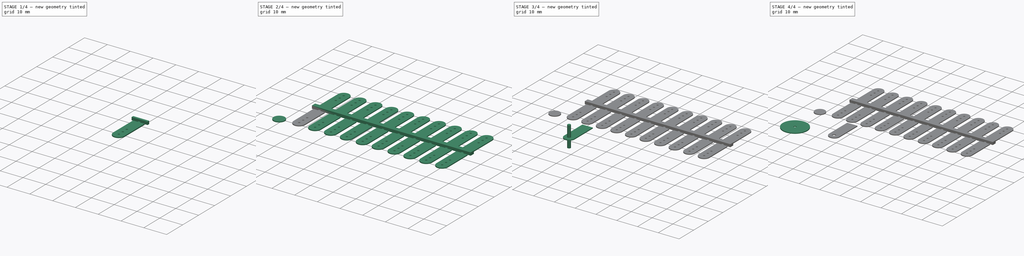
[diagram: build sequence overview — one tinted view per stage of 4, left to right]
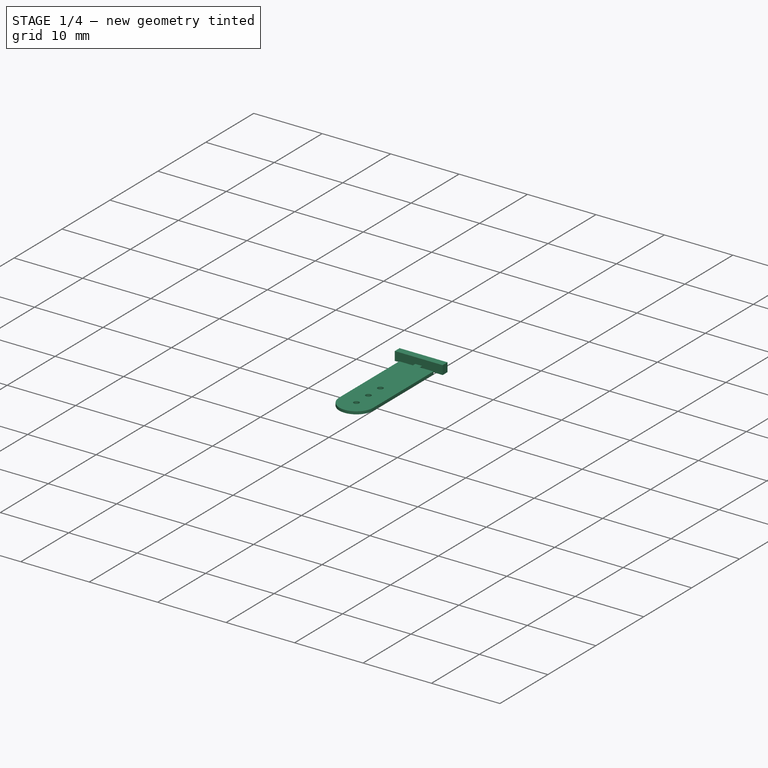
[diagram: stage 1 of 4 — iso view after this stage's code; geometry added in this stage tinted green]
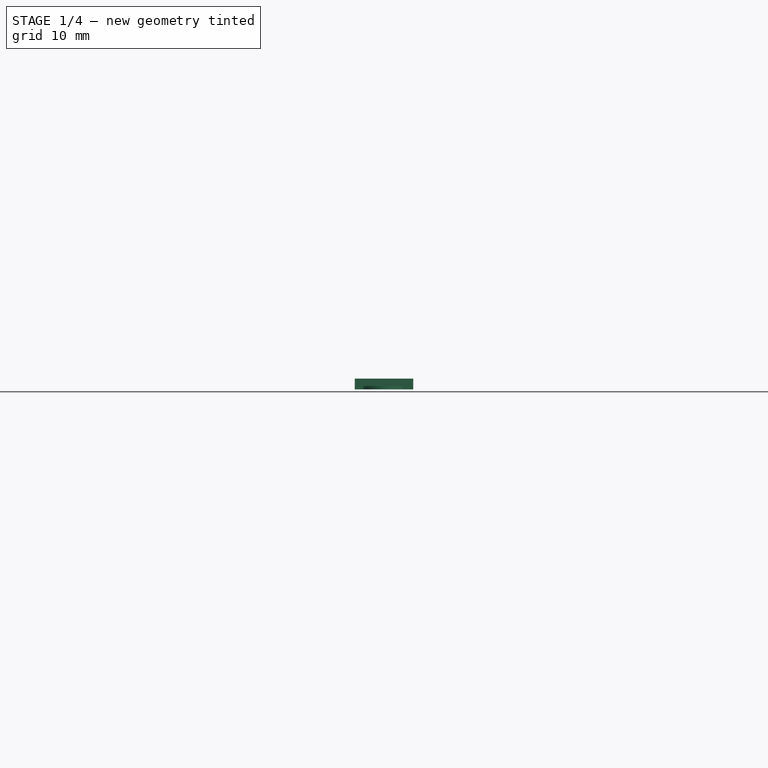
[diagram: stage 1 of 4 — front view after this stage's code; geometry added in this stage tinted green]
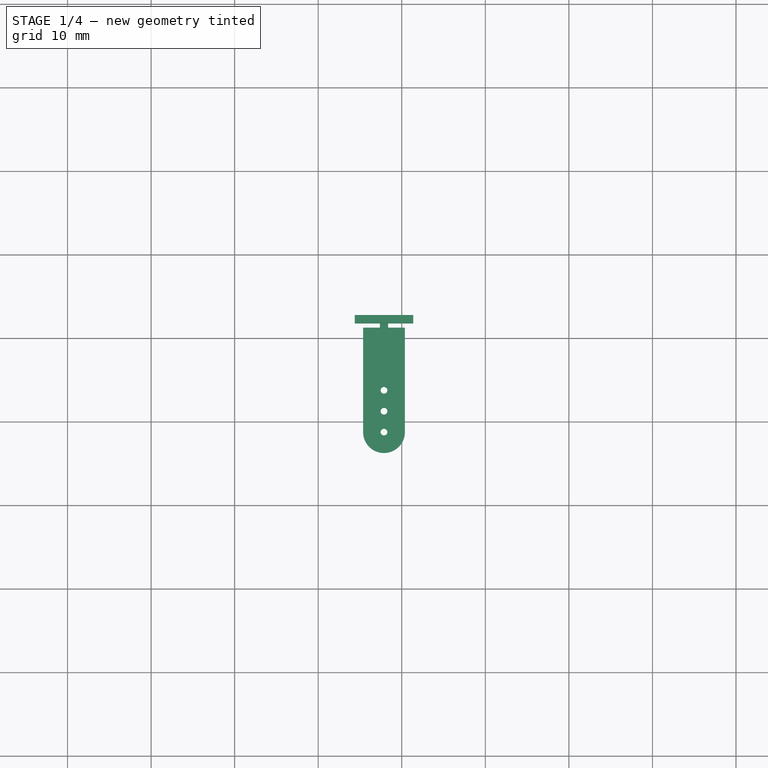
[diagram: stage 1 of 4 — top view after this stage's code; geometry added in this stage tinted green]
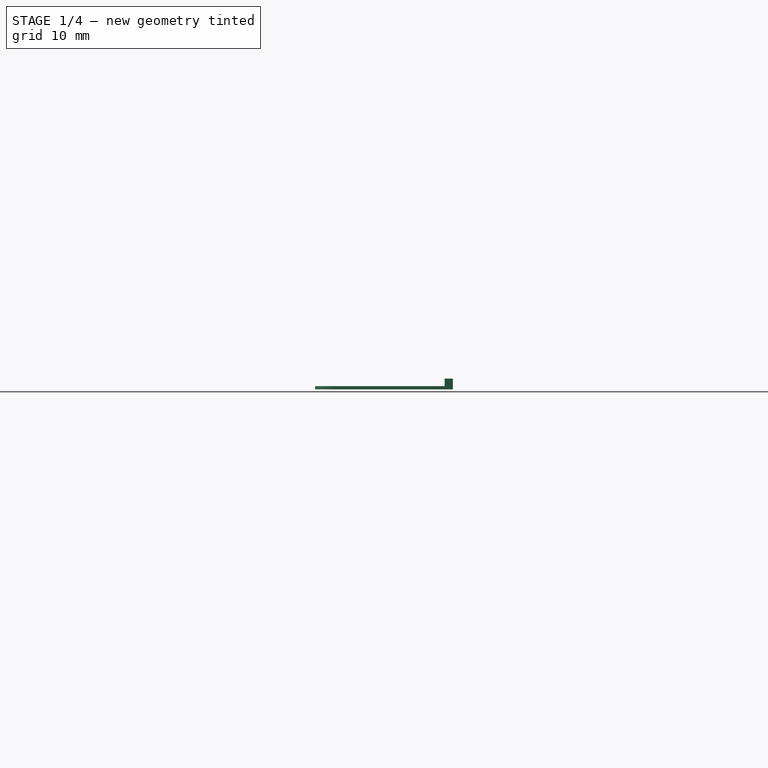
[diagram: stage 1 of 4 — right view after this stage's code; geometry added in this stage tinted green]
FCSTD DOCUMENT  (FreeCAD 1.0R39285 (Git))
Label: Кембрик
License: All rights reserved
LicenseURL: https://en.wikipedia.org/wiki/All_rights_reserved
objects: Part::Cylinder×2, PartDesign::Pad×2, Part::FeaturePython×1, Part::Box×1, Part::Fillet×1, Part::Cut×1, Sketcher::SketchObject×1, PartDesign::LinearPattern×1, PartDesign::Mirrored×1, PartDesign::Body×1
note: 19 computed .brp shape members not serialized (recipe doc carries the construction recipe); baked Part::Feature solids carry a one-line shape summary decoded from their .brp

FEATURE [Sketcher::SketchObject] Sketch
  ArcFitTolerance = 1e-06
  AttachmentSupport = -> [XY_Plane]
  FullyConstrained = false
  MakeInternals = false
  MapMode = 5
  sketch-geometry (20):
    g0: LineSegment StartX=4.37377 StartY=32.7895 StartZ=0 EndX=4.37377 EndY=31.7895 EndZ=0
    g1: LineSegment StartX=4.37377 StartY=31.7895 StartZ=0 EndX=7.37377 EndY=31.7895 EndZ=0
    g2: LineSegment StartX=7.37377 StartY=31.7895 StartZ=0 EndX=7.37377 EndY=31.2895 EndZ=0
    g3: LineSegment StartX=8.37377 StartY=31.2895 StartZ=0 EndX=8.37377 EndY=31.7895 EndZ=0
    g4: LineSegment StartX=8.37377 StartY=31.7895 StartZ=0 EndX=11.3738 EndY=31.7895 EndZ=0
    g5: LineSegment StartX=11.3738 StartY=31.7895 StartZ=0 EndX=11.3738 EndY=32.7895 EndZ=0
    g6: LineSegment StartX=11.3738 StartY=32.7895 StartZ=0 EndX=4.37377 EndY=32.7895 EndZ=0
    g7: LineSegment StartX=5.37377 StartY=31.2895 StartZ=0 EndX=5.37377 EndY=18.7895 EndZ=0
    g8: LineSegment StartX=10.3738 StartY=31.2895 StartZ=0 EndX=10.3738 EndY=18.7895 EndZ=0
    g9: Circle CenterX=7.87377 CenterY=18.7895 CenterZ=0 NormalX=0 NormalY=0 NormalZ=1 AngleXU=0 Radius=0.4
    g10: LineSegment StartX=7.37377 StartY=31.7895 StartZ=0 EndX=8.37377 EndY=31.7895 EndZ=0
    g11: LineSegment StartX=7.37377 StartY=31.2895 StartZ=0 EndX=5.37377 EndY=31.2895 EndZ=0
    g12: LineSegment StartX=8.37377 StartY=31.2895 StartZ=0 EndX=10.3738 EndY=31.2895 EndZ=0
    g13: ArcOfCircle CenterX=7.87377 CenterY=18.7895 CenterZ=0 NormalX=0 NormalY=0 NormalZ=1 AngleXU=0 Radius=2.5 StartAngle=3.14159 EndAngle=6.28319
    g14: GeomPoint X=7.87377 Y=16.2895 Z=0
    g15: Circle CenterX=7.87377 CenterY=21.2895 CenterZ=0 NormalX=0 NormalY=0 NormalZ=1 AngleXU=0 Radius=0.4
    g16: Circle CenterX=7.87377 CenterY=23.7895 CenterZ=0 NormalX=0 NormalY=0 NormalZ=1 AngleXU=0 Radius=0.4
    g17: LineSegment [constr] StartX=7.87377 StartY=23.7895 StartZ=0 EndX=7.87377 EndY=21.2895 EndZ=0
    g18: LineSegment [constr] StartX=7.87377 StartY=21.2895 StartZ=0 EndX=7.87377 EndY=18.7895 EndZ=0
    g19: LineSegment [constr] StartX=7.87377 StartY=23.7895 StartZ=0 EndX=10.3738 EndY=23.7895 EndZ=0
  constraints (52):
    c: Coincident(g0,g1)
    c: Coincident(g1,g2)
    c: Vertical(g3)
    c: Coincident(g3,g4)
    c: Horizontal(g4)
    c: Coincident(g4,g5)
    c: Vertical(g5)
    c: Coincident(g5,g6)
    c: Coincident(g6,g0)
    c: Horizontal(g1)
    c: Vertical(g0)
    c: Vertical(g2)
    c: Horizontal(g6)
    c: Equal(g4,g1)
    c: Horizontal(g3,g1)
    c: DistanceY(g3,g3) = 0.5
    c: DistanceX(g2,g3) = 1
    c: DistanceX(g6,g6) = 7
    c: DistanceY(g0,g0) = 1
    c: Vertical(g8)
    c: Vertical(g7)
    c: DistanceX(g7,g8) = 5
    c: Horizontal(g2,g3)
    c: Diameter(g9) = 0.8
    c: Coincident(g10,g1)
    c: Coincident(g10,g3)
    c: Coincident(g11,g2)
    c: Horizontal(g11)
    c: Coincident(g12,g3)
    c: Horizontal(g12)
    c: Coincident(g8,g12)
    c: Coincident(g7,g11)
    c: Coincident(g13,g9)
    c: Tangent(g7,g13) = -1.5708
    c: Tangent(g8,g13) = 1.5708
    c: PointOnObject(g14,g13)
    c: Vertical(g14,g9)
    c: DistanceY(g14,g8) = 15
    c: Equal(g12,g11)
    c: Vertical(g9,g15)
    c: Vertical(g15,g16)
    c: Coincident(g17,g16)
    c: Coincident(g17,g15)
    c: Coincident(g17,g18)
    c: Coincident(g18,g9)
    c: Equal(g9,g15)
    c: Equal(g15,g16)
    c: Equal(g17,g18)
    c: Coincident(g19,g16)
    c: PointOnObject(g19,g8)
    c: Horizontal(g19)
    c: Equal(g19,g17)
FEATURE [PartDesign::Pad] Pad
  Direction = (0,0,1)
  Length = 1.3
  Length2 = 10
  Profile = -> Sketch [Edge3,Edge4,Edge2,Edge7,Edge6,Edge5]
  ReferenceAxis = -> Sketch [N_Axis]
  Refine = true
  Suppressed = false
  Type = 0
FEATURE [PartDesign::Pad] Pad001
  BaseFeature = -> Pad
  Direction = (0,0,1)
  Length = 0.4
  Length2 = 10
  Profile = -> Sketch [Edge11,Edge10,Edge12,Edge9,Edge8,Edge1,Edge13,Edge16,Edge15,Edge14,Edge2]
  ReferenceAxis = -> Sketch [N_Axis]
  Refine = true
  Suppressed = false
  Type = 0
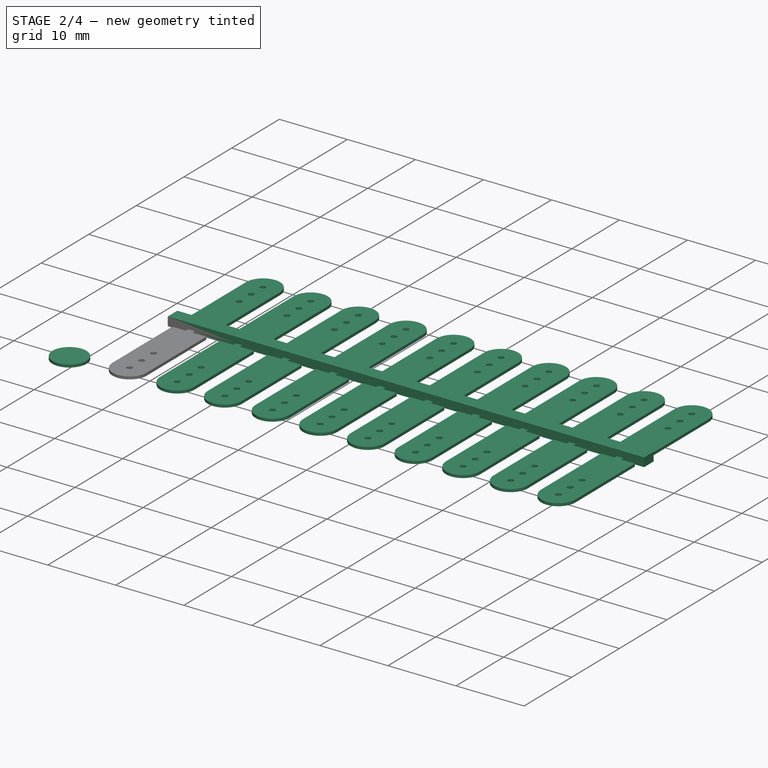
[diagram: stage 2 of 4 — iso view after this stage's code; geometry added in this stage tinted green]
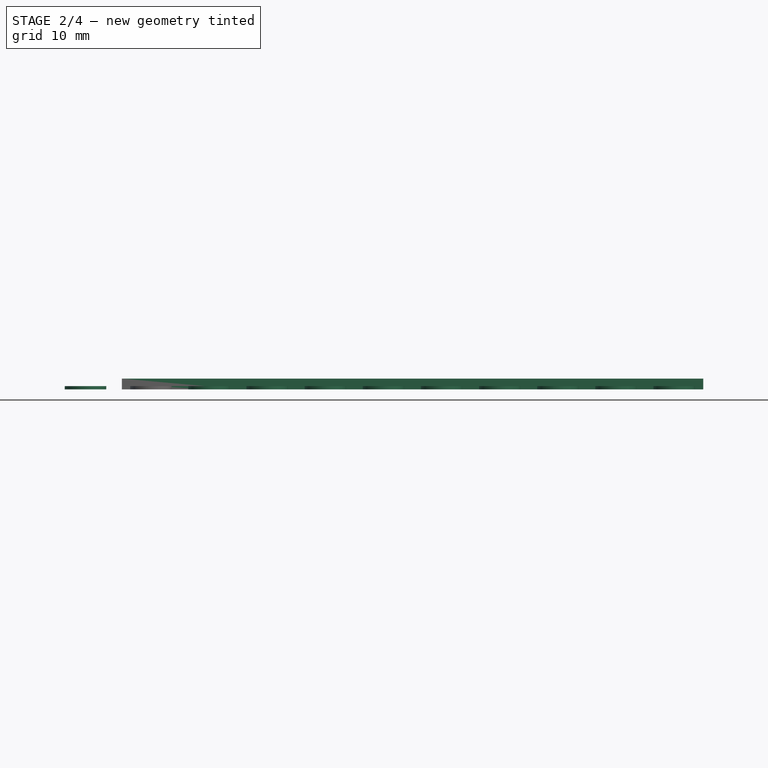
[diagram: stage 2 of 4 — front view after this stage's code; geometry added in this stage tinted green]
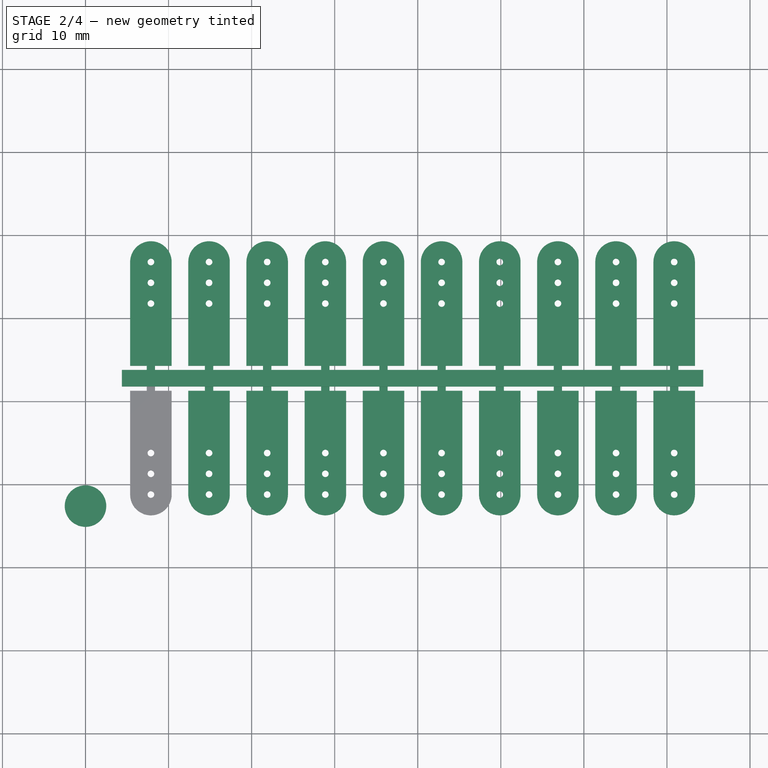
[diagram: stage 2 of 4 — top view after this stage's code; geometry added in this stage tinted green]
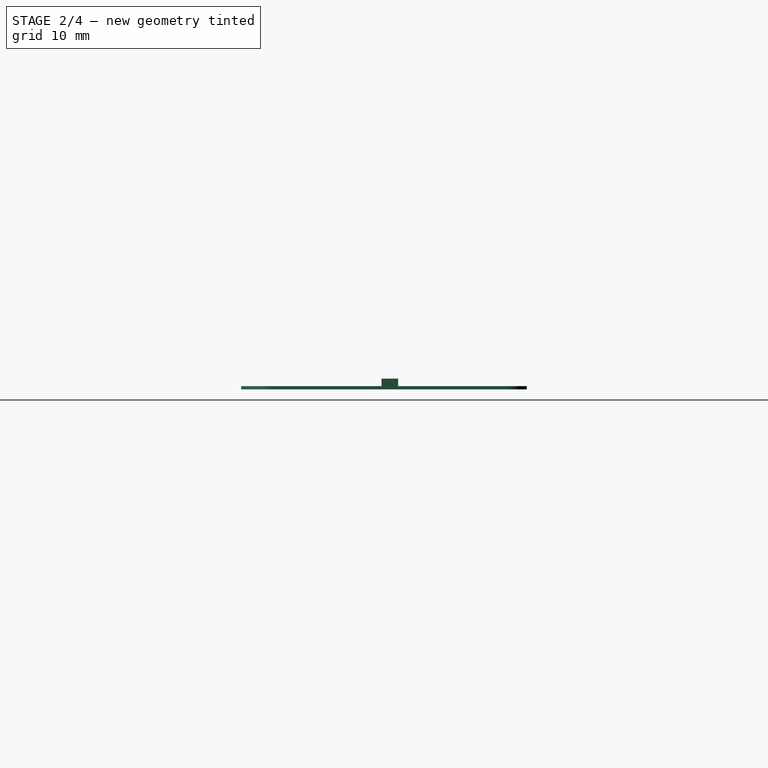
[diagram: stage 2 of 4 — right view after this stage's code; geometry added in this stage tinted green]
FEATURE [Part::Cylinder] Cylinder001  label="Цилиндр001"
  Angle = 360
  AttacherType = Attacher::AttachEngine3D
  FirstAngle = 0
  Height = 0.4
  Placement = pos=(0,17.4,0) rot=(0,0,1;0rad)
  Radius = 2.5
  SecondAngle = 0
FEATURE [PartDesign::LinearPattern] LinearPattern
  BaseFeature = -> Pad001
  Direction = -> X_Axis
  Length = 63
  Mode = 1
  Occurrences = 10
  Offset = 7
  Refine = true
  Suppressed = false
  TransformMode = 1
FEATURE [PartDesign::Mirrored] Mirrored
  BaseFeature = -> LinearPattern
  MirrorPlane = -> LinearPattern [Face116]
  Refine = true
  Suppressed = false
  TransformMode = 1
FEATURE [PartDesign::Body] Body  label="Тело"
  AllowCompound = false
  Group = -> [Sketch,Pad,Pad001,LinearPattern,Mirrored]
  Origin = -> Origin
  Tip = -> Mirrored
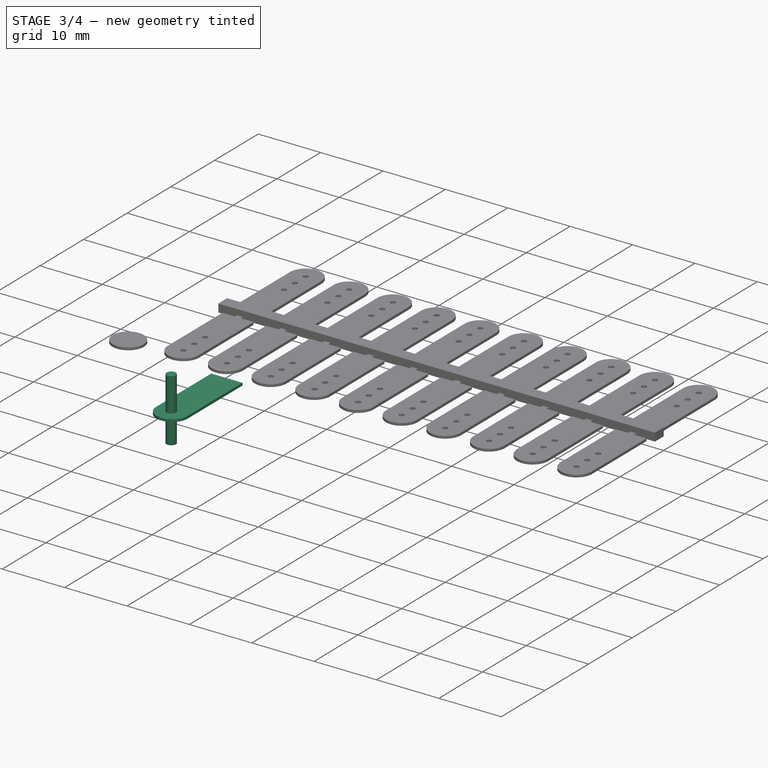
[diagram: stage 3 of 4 — iso view after this stage's code; geometry added in this stage tinted green]
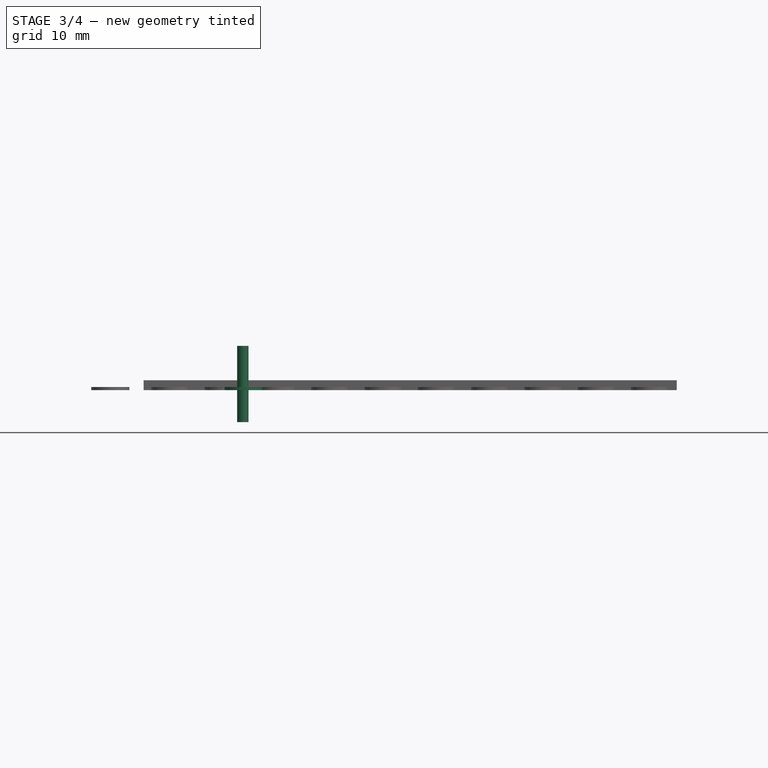
[diagram: stage 3 of 4 — front view after this stage's code; geometry added in this stage tinted green]
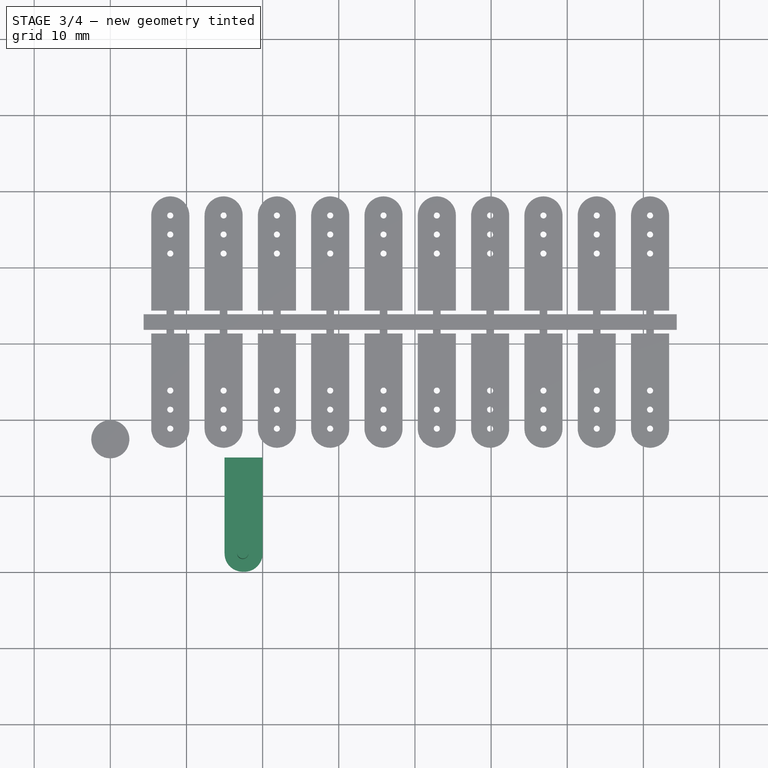
[diagram: stage 3 of 4 — top view after this stage's code; geometry added in this stage tinted green]
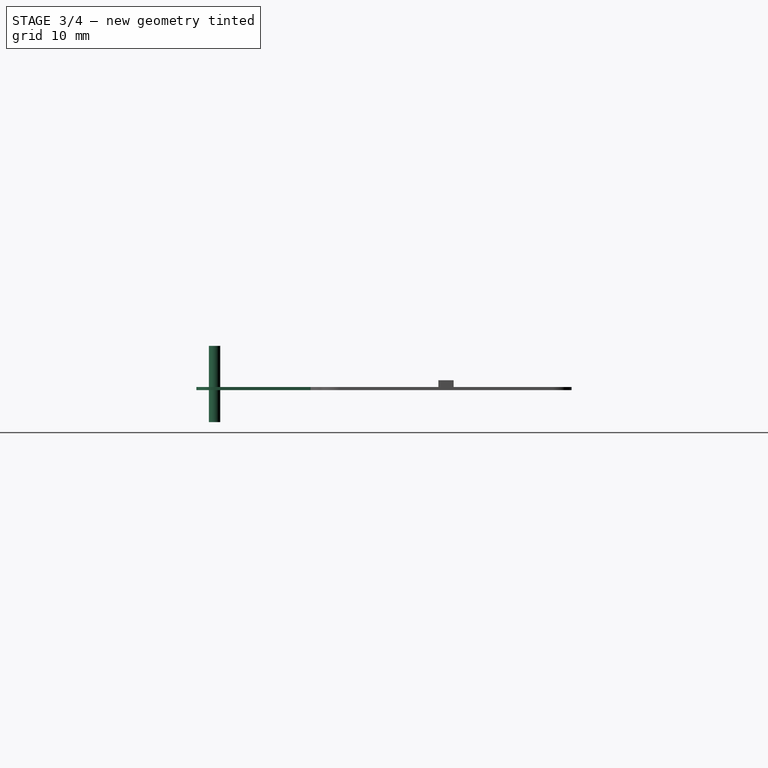
[diagram: stage 3 of 4 — right view after this stage's code; geometry added in this stage tinted green]
FEATURE [Part::Box] Box  label="Куб"
  AttacherType = Attacher::AttachEngine3D
  Height = 0.4
  Length = 5
  Placement = pos=(15,0,0) rot=(0,0,1;0rad)
  Width = 15
FEATURE [Part::Cylinder] Cylinder  label="Цилиндр"
  Angle = 360
  AttacherType = Attacher::AttachEngine3D
  FirstAngle = 0
  Height = 10
  Placement = pos=(17.4,2.4,-4.2) rot=(0,0,1;0rad)
  Radius = 0.75
  SecondAngle = 0
FEATURE [Part::Fillet] Fillet
  Base = -> Box
  EdgeLinks = -> Box [Edge1,Edge5]
  Edges = 2 edges r=2.4: [Edge1,Edge5]
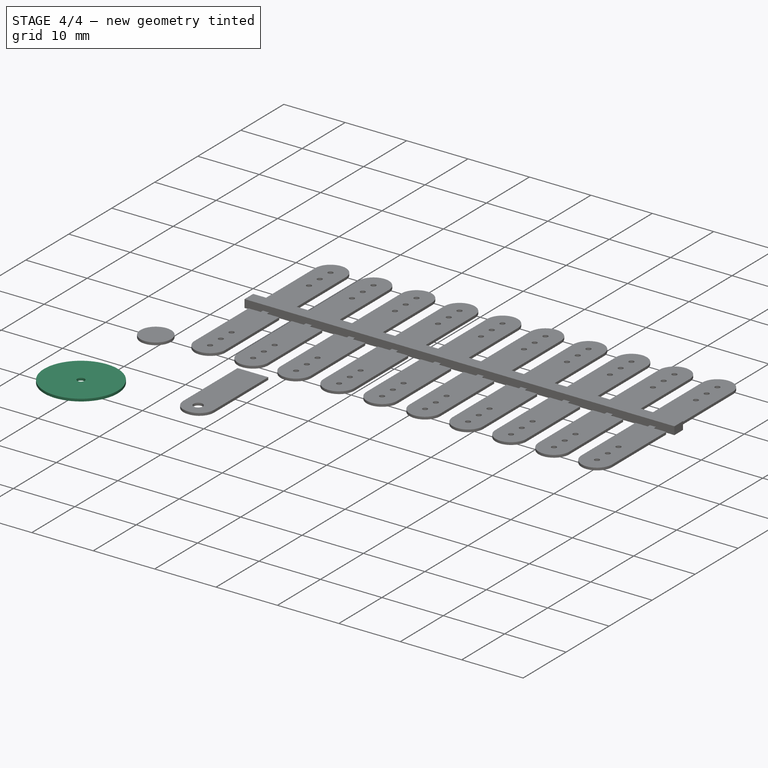
[diagram: stage 4 of 4 — iso view after this stage's code; geometry added in this stage tinted green]
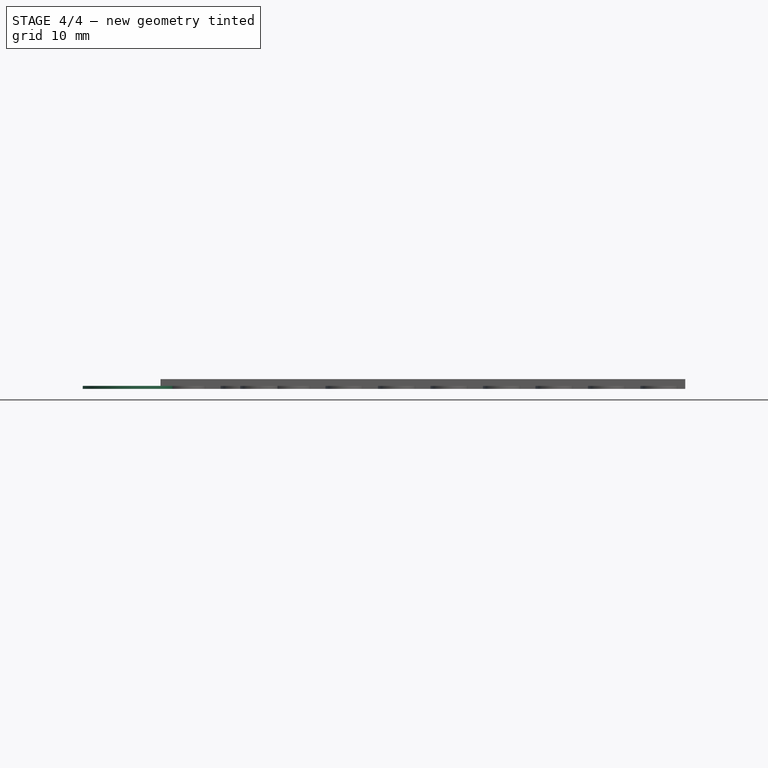
[diagram: stage 4 of 4 — front view after this stage's code; geometry added in this stage tinted green]
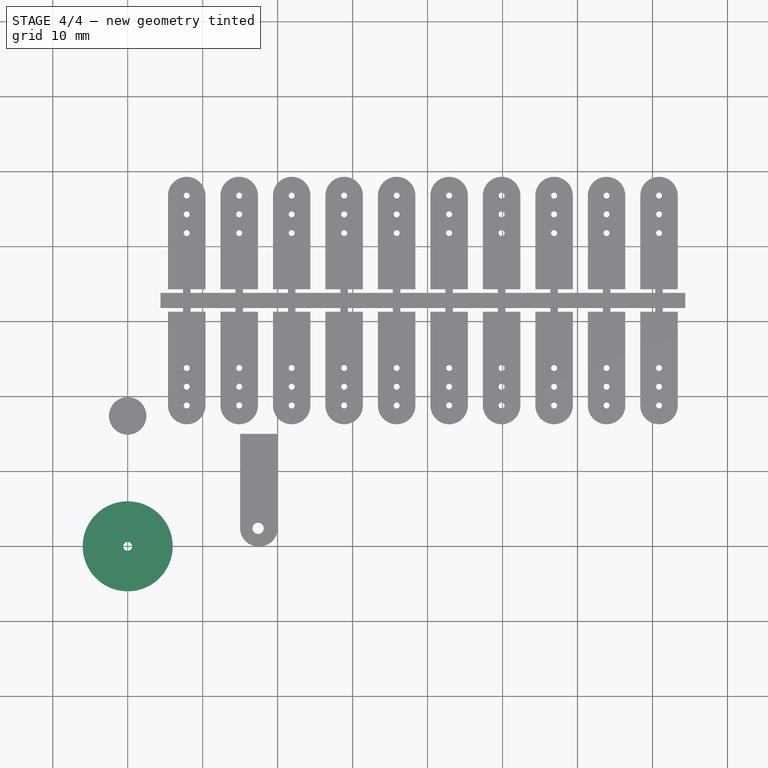
[diagram: stage 4 of 4 — top view after this stage's code; geometry added in this stage tinted green]
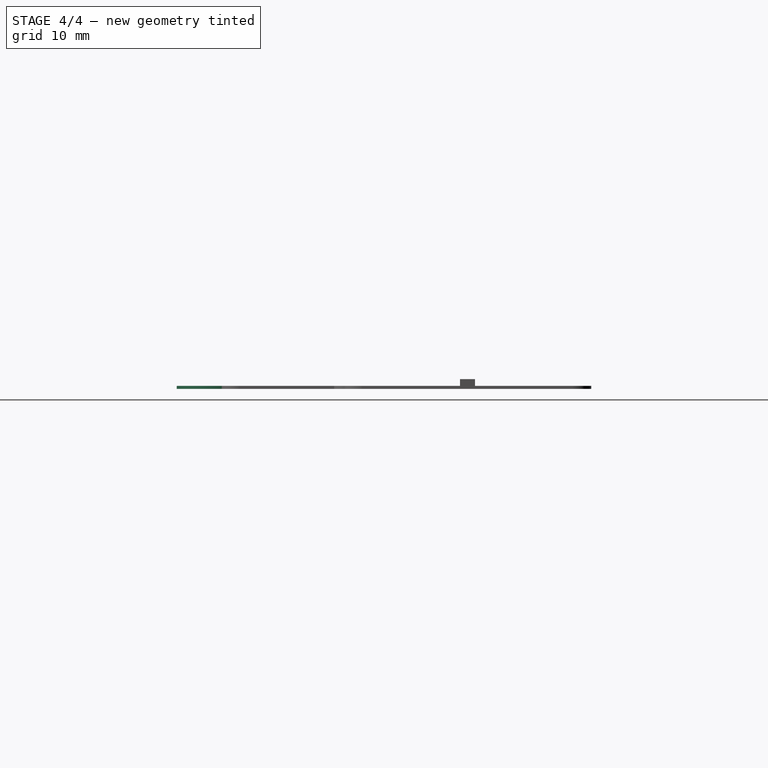
[diagram: stage 4 of 4 — right view after this stage's code; geometry added in this stage tinted green]
FEATURE [Part::FeaturePython] Tube  # WARN: FeaturePython — macro-defined, semantics opaque (R4)
  AttacherType = Attacher::AttachEngine3D
  Height = 0.4
  InnerRadius = 0.6
  OuterRadius = 6
FEATURE [Part::Cut] Cut
  Base = -> Fillet
  Refine = true
  Tool = -> Cylinder
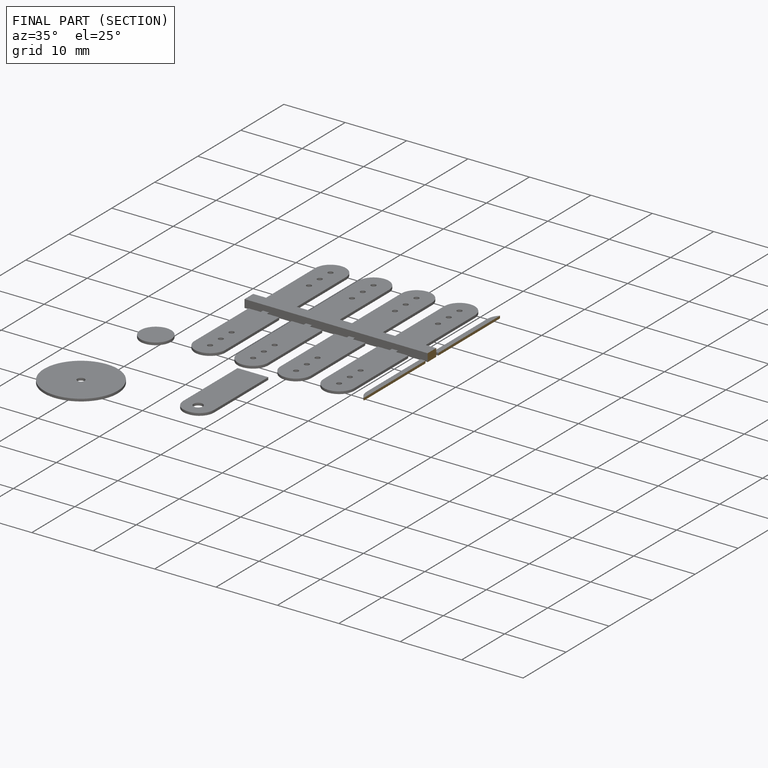
[diagram: finished part — half-section view (interior)]
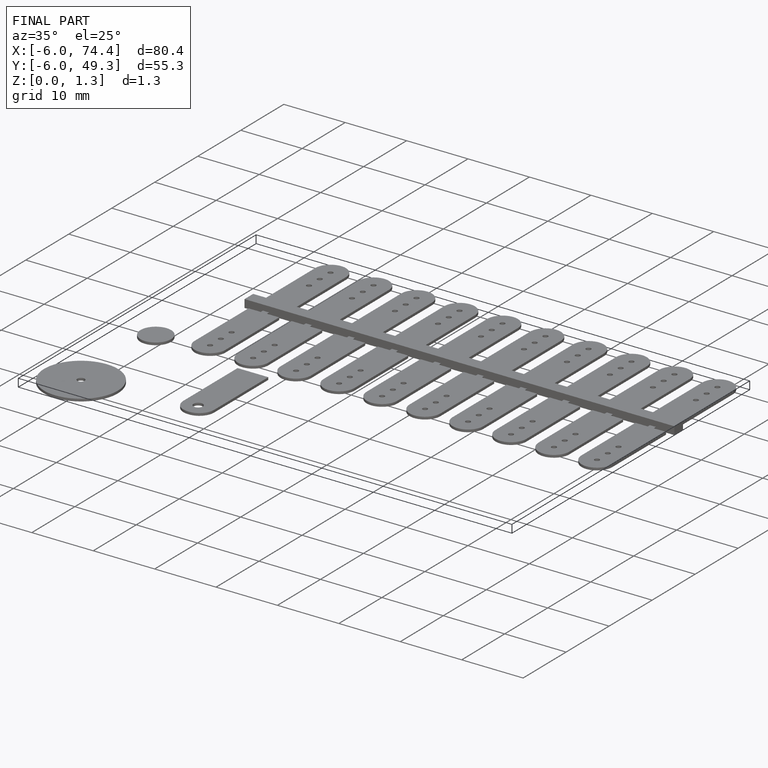
[diagram: finished part — iso view with bounding-box wireframe]
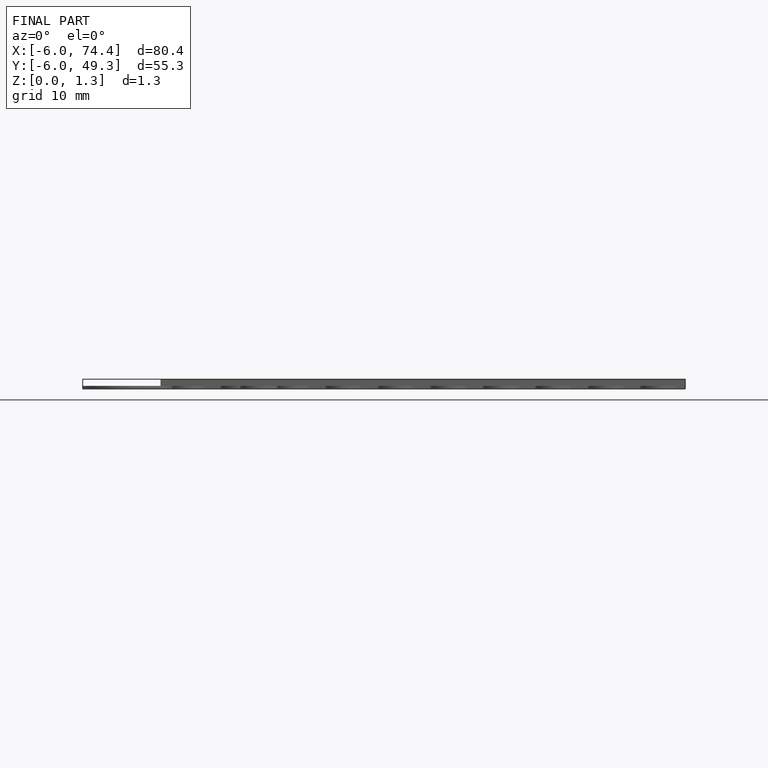
[diagram: finished part — front view with bounding-box wireframe]
